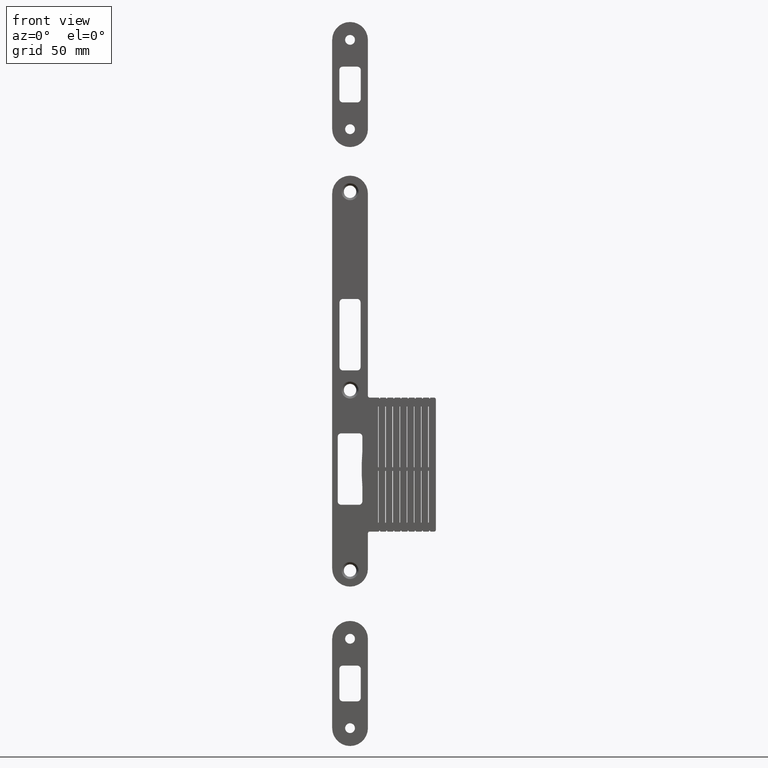
[diagram: clean part render]
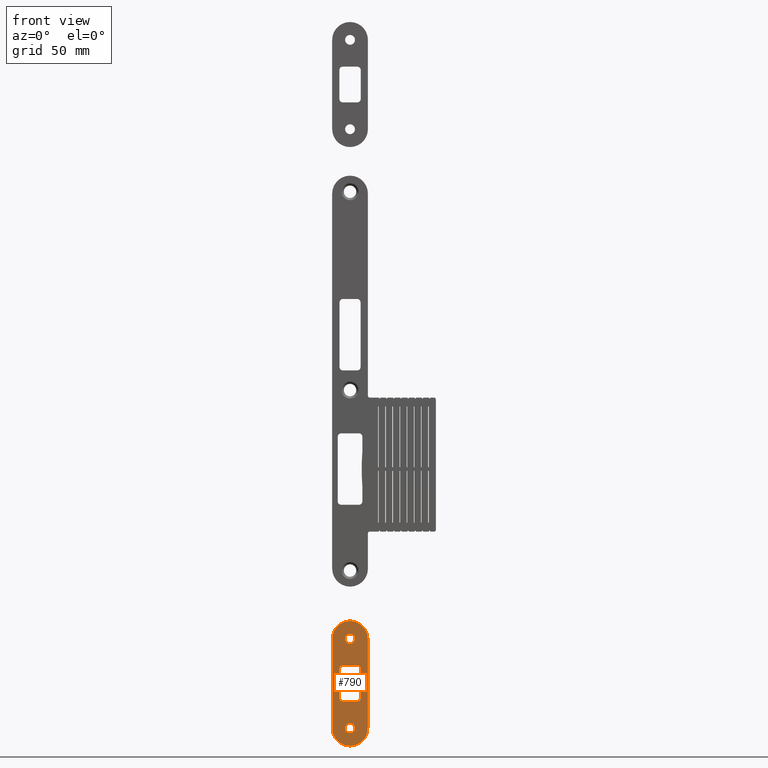
[diagram: same view with one face highlighted and labeled with its STEP entity id]
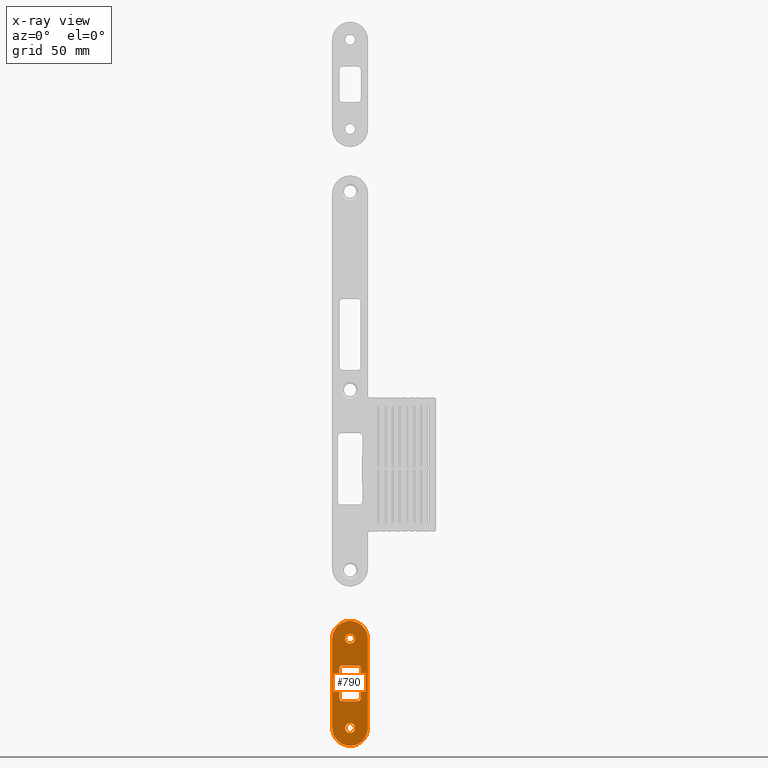
[diagram: x-ray of the same camera — body ghosted, the highlighted face saturated]
A machine part, front view. The second image highlights one B-rep face of the part: STEP entity #790.
The next image is the same camera in x-ray: the body ghosted, the highlighted face saturated — about 0% of this face is hidden behind the body in this view.
In plain terms, the highlighted planar face has unit normal (0, 1, 0).
Its self-contained STEP definition (entity closure, byte-faithful):
#20 = LINE ( 'NONE', #6127, #4874 ) ;
#33 = CARTESIAN_POINT ( 'NONE',  ( 5.204170427930421283E-15, 0.000000000000000000, 27.75000000000000000 ) ) ;
#140 = DIRECTION ( 'NONE',  ( 0.000000000000000000, 0.000000000000000000, 1.000000000000000000 ) ) ;
#166 = DIRECTION ( 'NONE',  ( 1.626303258728259363E-16, 0.000000000000000000, 1.000000000000000000 ) ) ;
#221 = ORIENTED_EDGE ( 'NONE', *, *, #1612, .T. ) ;
#410 = DIRECTION ( 'NONE',  ( 0.000000000000000000, 0.000000000000000000, -1.000000000000000000 ) ) ;
#423 = DIRECTION ( 'NONE',  ( 1.000000000000000000, 0.000000000000000000, 0.000000000000000000 ) ) ;
#445 = VERTEX_POINT ( 'NONE', #1940 ) ;
#475 = CARTESIAN_POINT ( 'NONE',  ( -9.999999999999996447, 0.000000000000000000, 25.00000000000000000 ) ) ;
#536 = DIRECTION ( 'NONE',  ( 0.000000000000000000, 1.000000000000000000, 0.000000000000000000 ) ) ;
#552 = VERTEX_POINT ( 'NONE', #4043 ) ;
#570 = CIRCLE ( 'NONE', #1866, 2.749999999999999112 ) ;
#663 = ORIENTED_EDGE ( 'NONE', *, *, #926, .T. ) ;
#682 = CIRCLE ( 'NONE', #6141, 10.00000000000000178 ) ;
#716 = EDGE_CURVE ( 'NONE', #4019, #6122, #3871, .T. ) ;
#772 = VERTEX_POINT ( 'NONE', #33 ) ;
#790 = ADVANCED_FACE ( 'NONE', ( #4972, #3856, #5531, #4433 ), #3340, .F. ) ;
#825 = CIRCLE ( 'NONE', #6622, 2.749999999999999112 ) ;
#924 = CIRCLE ( 'NONE', #3471, 2.000000000000000000 ) ;
#926 = EDGE_CURVE ( 'NONE', #552, #1417, #4350, .T. ) ;
#934 = EDGE_CURVE ( 'NONE', #1809, #1156, #4036, .T. ) ;
#953 = VERTEX_POINT ( 'NONE', #2369 ) ;
#964 = CIRCLE ( 'NONE', #1425, 10.00000000000000178 ) ;
#990 = DIRECTION ( 'NONE',  ( 0.000000000000000000, 0.000000000000000000, 1.000000000000000000 ) ) ;
#1052 = DIRECTION ( 'NONE',  ( 0.000000000000000000, 0.000000000000000000, 1.000000000000000000 ) ) ;
#1118 = VERTEX_POINT ( 'NONE', #475 ) ;
#1133 = VERTEX_POINT ( 'NONE', #6086 ) ;
#1146 = DIRECTION ( 'NONE',  ( 1.486905836551548832E-16, 0.000000000000000000, 1.000000000000000000 ) ) ;
#1155 = CARTESIAN_POINT ( 'NONE',  ( -1.982541115402064913E-15, 0.000000000000000000, -24.99999999999999645 ) ) ;
#1156 = VERTEX_POINT ( 'NONE', #3320 ) ;
#1180 = CARTESIAN_POINT ( 'NONE',  ( 1.734723475976807094E-15, 0.000000000000000000, -34.99999999999999289 ) ) ;
#1220 = CARTESIAN_POINT ( 'NONE',  ( 3.469446951953614189E-15, 0.000000000000000000, 25.00000000000000000 ) ) ;
#1260 = EDGE_CURVE ( 'NONE', #6122, #445, #5721, .T. ) ;
#1395 = CARTESIAN_POINT ( 'NONE',  ( 10.00000000000000533, 0.000000000000000000, -24.99999999999999289 ) ) ;
#1417 = VERTEX_POINT ( 'NONE', #7057 ) ;
#1425 = AXIS2_PLACEMENT_3D ( 'NONE', #5252, #6262, #6305 ) ;
#1494 = DIRECTION ( 'NONE',  ( 0.000000000000000000, 1.000000000000000000, 0.000000000000000000 ) ) ;
#1561 = DIRECTION ( 'NONE',  ( 0.000000000000000000, 0.000000000000000000, 1.000000000000000000 ) ) ;
#1567 = ORIENTED_EDGE ( 'NONE', *, *, #6455, .T. ) ;
#1579 = CARTESIAN_POINT ( 'NONE',  ( 10.00000000000000533, 0.000000000000000000, 35.00000000000000000 ) ) ;
#1587 = ORIENTED_EDGE ( 'NONE', *, *, #3513, .T. ) ;
#1612 = EDGE_CURVE ( 'NONE', #2912, #772, #3138, .T. ) ;
#1665 = ORIENTED_EDGE ( 'NONE', *, *, #3487, .T. ) ;
#1668 = DIRECTION ( 'NONE',  ( -0.000000000000000000, -1.000000000000000000, 0.000000000000000000 ) ) ;
#1809 = VERTEX_POINT ( 'NONE', #2615 ) ;
#1812 = CARTESIAN_POINT ( 'NONE',  ( 3.469446951953614189E-15, 0.000000000000000000, -24.99999999999999645 ) ) ;
#1840 = CARTESIAN_POINT ( 'NONE',  ( -6.000000000000000888, 0.000000000000000000, -7.999999999999986677 ) ) ;
#1866 = AXIS2_PLACEMENT_3D ( 'NONE', #1812, #6824, #1927 ) ;
#1879 = CIRCLE ( 'NONE', #5827, 10.00000000000000178 ) ;
#1882 = ORIENTED_EDGE ( 'NONE', *, *, #5081, .T. ) ;
#1927 = DIRECTION ( 'NONE',  ( 0.000000000000000000, 0.000000000000000000, 1.000000000000000000 ) ) ;
#1940 = CARTESIAN_POINT ( 'NONE',  ( 5.999999999999998224, 0.000000000000000000, -7.999999999999986677 ) ) ;
#2014 = EDGE_CURVE ( 'NONE', #5305, #1118, #20, .T. ) ;
#2048 = ORIENTED_EDGE ( 'NONE', *, *, #716, .T. ) ;
#2079 = EDGE_LOOP ( 'NONE', ( #4048, #221 ) ) ;
#2118 = DIRECTION ( 'NONE',  ( 0.000000000000000000, 1.000000000000000000, -0.000000000000000000 ) ) ;
#2146 = VERTEX_POINT ( 'NONE', #2506 ) ;
#2349 = AXIS2_PLACEMENT_3D ( 'NONE', #4008, #536, #5502 ) ;
#2369 = CARTESIAN_POINT ( 'NONE',  ( -5.999999999999999112, 0.000000000000000000, 7.999999999999986677 ) ) ;
#2506 = CARTESIAN_POINT ( 'NONE',  ( -3.999999999999984457, 0.000000000000000000, 10.00000000000000000 ) ) ;
#2538 = ORIENTED_EDGE ( 'NONE', *, *, #5900, .T. ) ;
#2615 = CARTESIAN_POINT ( 'NONE',  ( 3.999999999999984457, 0.000000000000000000, -10.00000000000000000 ) ) ;
#2617 = ORIENTED_EDGE ( 'NONE', *, *, #4356, .T. ) ;
#2719 = VERTEX_POINT ( 'NONE', #1395 ) ;
#2819 = EDGE_CURVE ( 'NONE', #445, #1809, #4964, .T. ) ;
#2864 = CARTESIAN_POINT ( 'NONE',  ( -3.999999999999986233, 0.000000000000000000, -10.00000000000000000 ) ) ;
#2899 = DIRECTION ( 'NONE',  ( 0.000000000000000000, 0.000000000000000000, 1.000000000000000000 ) ) ;
#2912 = VERTEX_POINT ( 'NONE', #6801 ) ;
#2958 = DIRECTION ( 'NONE',  ( -2.168404344971012566E-16, -0.000000000000000000, -1.000000000000000000 ) ) ;
#3037 = EDGE_CURVE ( 'NONE', #953, #2146, #924, .T. ) ;
#3135 = DIRECTION ( 'NONE',  ( 0.000000000000000000, 1.000000000000000000, 0.000000000000000000 ) ) ;
#3138 = CIRCLE ( 'NONE', #5349, 2.749999999999999112 ) ;
#3182 = LINE ( 'NONE', #1579, #5458 ) ;
#3300 = VERTEX_POINT ( 'NONE', #4580 ) ;
#3310 = CARTESIAN_POINT ( 'NONE',  ( 5.204170427930421283E-15, 0.000000000000000000, 25.00000000000000000 ) ) ;
#3320 = CARTESIAN_POINT ( 'NONE',  ( -3.999999999999986233, 0.000000000000000000, -10.00000000000000000 ) ) ;
#3340 = PLANE ( 'NONE',  #6648 ) ;
#3423 = CARTESIAN_POINT ( 'NONE',  ( 3.999999999999988010, 0.000000000000000000, 10.00000000000000000 ) ) ;
#3471 = AXIS2_PLACEMENT_3D ( 'NONE', #6474, #1494, #3755 ) ;
#3487 = EDGE_CURVE ( 'NONE', #3300, #1133, #682, .T. ) ;
#3513 = EDGE_CURVE ( 'NONE', #2146, #4019, #3909, .T. ) ;
#3561 = CARTESIAN_POINT ( 'NONE',  ( 5.204170427930421283E-15, 0.000000000000000000, 25.00000000000000000 ) ) ;
#3603 = VERTEX_POINT ( 'NONE', #1180 ) ;
#3679 = EDGE_LOOP ( 'NONE', ( #6279, #1587, #2048, #5320, #4142, #6467, #2538, #1882 ) ) ;
#3755 = DIRECTION ( 'NONE',  ( 0.000000000000000000, 0.000000000000000000, 1.000000000000000000 ) ) ;
#3803 = EDGE_CURVE ( 'NONE', #3300, #2719, #3182, .T. ) ;
#3856 = FACE_BOUND ( 'NONE', #2079, .T. ) ;
#3868 = AXIS2_PLACEMENT_3D ( 'NONE', #1155, #1668, #4393 ) ;
#3871 = CIRCLE ( 'NONE', #4230, 2.000000000000000000 ) ;
#3909 = LINE ( 'NONE', #4519, #4981 ) ;
#4008 = CARTESIAN_POINT ( 'NONE',  ( -4.000000000000000888, 0.000000000000000000, -8.000000000000000000 ) ) ;
#4019 = VERTEX_POINT ( 'NONE', #3423 ) ;
#4036 = LINE ( 'NONE', #2864, #6650 ) ;
#4043 = CARTESIAN_POINT ( 'NONE',  ( 3.469446951953614189E-15, 0.000000000000000000, -22.25000000000000000 ) ) ;
#4048 = ORIENTED_EDGE ( 'NONE', *, *, #4582, .T. ) ;
#4130 = CARTESIAN_POINT ( 'NONE',  ( 5.999999999999998224, 0.000000000000000000, -7.999999999999986677 ) ) ;
#4142 = ORIENTED_EDGE ( 'NONE', *, *, #2819, .T. ) ;
#4230 = AXIS2_PLACEMENT_3D ( 'NONE', #5899, #3135, #1052 ) ;
#4267 = ORIENTED_EDGE ( 'NONE', *, *, #3803, .F. ) ;
#4350 = CIRCLE ( 'NONE', #6774, 2.749999999999999112 ) ;
#4356 = EDGE_CURVE ( 'NONE', #1417, #552, #570, .T. ) ;
#4371 = DIRECTION ( 'NONE',  ( 0.000000000000000000, 1.000000000000000000, -0.000000000000000000 ) ) ;
#4393 = DIRECTION ( 'NONE',  ( 8.881784197001252323E-16, 0.000000000000000000, 1.000000000000000000 ) ) ;
#4433 = FACE_BOUND ( 'NONE', #3679, .T. ) ;
#4454 = DIRECTION ( 'NONE',  ( 0.000000000000000000, 0.000000000000000000, 1.000000000000000000 ) ) ;
#4519 = CARTESIAN_POINT ( 'NONE',  ( -3.999999999999984457, 0.000000000000000000, 10.00000000000000000 ) ) ;
#4580 = CARTESIAN_POINT ( 'NONE',  ( 10.00000000000000533, 0.000000000000000000, 25.00000000000000000 ) ) ;
#4582 = EDGE_CURVE ( 'NONE', #772, #2912, #825, .T. ) ;
#4641 = ORIENTED_EDGE ( 'NONE', *, *, #6277, .T. ) ;
#4782 = VECTOR ( 'NONE', #166, 1000.000000000000000 ) ;
#4813 = VECTOR ( 'NONE', #2958, 1000.000000000000000 ) ;
#4859 = CARTESIAN_POINT ( 'NONE',  ( 5.204170427930421283E-15, 0.000000000000000000, 25.00000000000000000 ) ) ;
#4874 = VECTOR ( 'NONE', #1146, 1000.000000000000000 ) ;
#4916 = CARTESIAN_POINT ( 'NONE',  ( 3.999999999999998224, 0.000000000000000000, -8.000000000000000000 ) ) ;
#4924 = CARTESIAN_POINT ( 'NONE',  ( -10.00000000000000355, 0.000000000000000000, -24.99999999999999645 ) ) ;
#4964 = CIRCLE ( 'NONE', #6950, 2.000000000000000000 ) ;
#4972 = FACE_BOUND ( 'NONE', #6094, .T. ) ;
#4981 = VECTOR ( 'NONE', #423, 1000.000000000000000 ) ;
#5013 = DIRECTION ( 'NONE',  ( 0.000000000000000000, 1.000000000000000000, -0.000000000000000000 ) ) ;
#5081 = EDGE_CURVE ( 'NONE', #6970, #953, #6238, .T. ) ;
#5252 = CARTESIAN_POINT ( 'NONE',  ( 3.469446951953614189E-15, 0.000000000000000000, -24.99999999999999645 ) ) ;
#5304 = EDGE_LOOP ( 'NONE', ( #4641, #5696, #4267, #1665, #1567, #5518 ) ) ;
#5305 = VERTEX_POINT ( 'NONE', #4924 ) ;
#5320 = ORIENTED_EDGE ( 'NONE', *, *, #1260, .T. ) ;
#5349 = AXIS2_PLACEMENT_3D ( 'NONE', #3310, #2118, #990 ) ;
#5416 = DIRECTION ( 'NONE',  ( -0.000000000000000000, -1.000000000000000000, 0.000000000000000000 ) ) ;
#5420 = CARTESIAN_POINT ( 'NONE',  ( 6.000000000000001776, 0.000000000000000000, 7.999999999999986677 ) ) ;
#5458 = VECTOR ( 'NONE', #410, 1000.000000000000000 ) ;
#5499 = DIRECTION ( 'NONE',  ( 0.000000000000000000, 0.000000000000000000, 1.000000000000000000 ) ) ;
#5502 = DIRECTION ( 'NONE',  ( 0.000000000000000000, 0.000000000000000000, 1.000000000000000000 ) ) ;
#5518 = ORIENTED_EDGE ( 'NONE', *, *, #2014, .F. ) ;
#5531 = FACE_OUTER_BOUND ( 'NONE', #5304, .T. ) ;
#5563 = CARTESIAN_POINT ( 'NONE',  ( 0.000000000000000000, 0.000000000000000000, 0.000000000000000000 ) ) ;
#5696 = ORIENTED_EDGE ( 'NONE', *, *, #5697, .T. ) ;
#5697 = EDGE_CURVE ( 'NONE', #3603, #2719, #964, .T. ) ;
#5712 = DIRECTION ( 'NONE',  ( 0.000000000000000000, 0.000000000000000000, -1.000000000000000000 ) ) ;
#5718 = CIRCLE ( 'NONE', #2349, 2.000000000000000000 ) ;
#5721 = LINE ( 'NONE', #4130, #4813 ) ;
#5827 = AXIS2_PLACEMENT_3D ( 'NONE', #3561, #6246, #2899 ) ;
#5899 = CARTESIAN_POINT ( 'NONE',  ( 4.000000000000001776, 0.000000000000000000, 8.000000000000000000 ) ) ;
#5900 = EDGE_CURVE ( 'NONE', #1156, #6970, #5718, .T. ) ;
#6086 = CARTESIAN_POINT ( 'NONE',  ( 3.469446951953614189E-15, 0.000000000000000000, 35.00000000000000000 ) ) ;
#6094 = EDGE_LOOP ( 'NONE', ( #663, #2617 ) ) ;
#6122 = VERTEX_POINT ( 'NONE', #5420 ) ;
#6127 = CARTESIAN_POINT ( 'NONE',  ( -10.00000000000000533, 0.000000000000000000, -35.00000000000000000 ) ) ;
#6141 = AXIS2_PLACEMENT_3D ( 'NONE', #1220, #5416, #4454 ) ;
#6178 = CARTESIAN_POINT ( 'NONE',  ( 3.469446951953614189E-15, 0.000000000000000000, -24.99999999999999645 ) ) ;
#6238 = LINE ( 'NONE', #1840, #4782 ) ;
#6246 = DIRECTION ( 'NONE',  ( -0.000000000000000000, -1.000000000000000000, 0.000000000000000000 ) ) ;
#6262 = DIRECTION ( 'NONE',  ( -0.000000000000000000, -1.000000000000000000, 0.000000000000000000 ) ) ;
#6277 = EDGE_CURVE ( 'NONE', #5305, #3603, #7116, .T. ) ;
#6279 = ORIENTED_EDGE ( 'NONE', *, *, #3037, .T. ) ;
#6305 = DIRECTION ( 'NONE',  ( 0.000000000000000000, 0.000000000000000000, 1.000000000000000000 ) ) ;
#6374 = CARTESIAN_POINT ( 'NONE',  ( -6.000000000000000888, 0.000000000000000000, -7.999999999999986677 ) ) ;
#6455 = EDGE_CURVE ( 'NONE', #1133, #1118, #1879, .T. ) ;
#6467 = ORIENTED_EDGE ( 'NONE', *, *, #934, .T. ) ;
#6474 = CARTESIAN_POINT ( 'NONE',  ( -3.999999999999998224, 0.000000000000000000, 8.000000000000000000 ) ) ;
#6534 = DIRECTION ( 'NONE',  ( 0.000000000000000000, 1.000000000000000000, -0.000000000000000000 ) ) ;
#6622 = AXIS2_PLACEMENT_3D ( 'NONE', #4859, #6534, #1561 ) ;
#6648 = AXIS2_PLACEMENT_3D ( 'NONE', #5563, #5013, #5499 ) ;
#6650 = VECTOR ( 'NONE', #6828, 1000.000000000000000 ) ;
#6774 = AXIS2_PLACEMENT_3D ( 'NONE', #6178, #6871, #140 ) ;
#6801 = CARTESIAN_POINT ( 'NONE',  ( 5.540948297695943730E-15, 0.000000000000000000, 22.25000000000000355 ) ) ;
#6824 = DIRECTION ( 'NONE',  ( 0.000000000000000000, 1.000000000000000000, -0.000000000000000000 ) ) ;
#6828 = DIRECTION ( 'NONE',  ( -1.000000000000000000, -0.000000000000000000, -0.000000000000000000 ) ) ;
#6871 = DIRECTION ( 'NONE',  ( 0.000000000000000000, 1.000000000000000000, -0.000000000000000000 ) ) ;
#6950 = AXIS2_PLACEMENT_3D ( 'NONE', #4916, #4371, #5712 ) ;
#6970 = VERTEX_POINT ( 'NONE', #6374 ) ;
#7057 = CARTESIAN_POINT ( 'NONE',  ( 3.806224821719136635E-15, 0.000000000000000000, -27.74999999999999645 ) ) ;
#7116 = CIRCLE ( 'NONE', #3868, 10.00000000000000178 ) ;